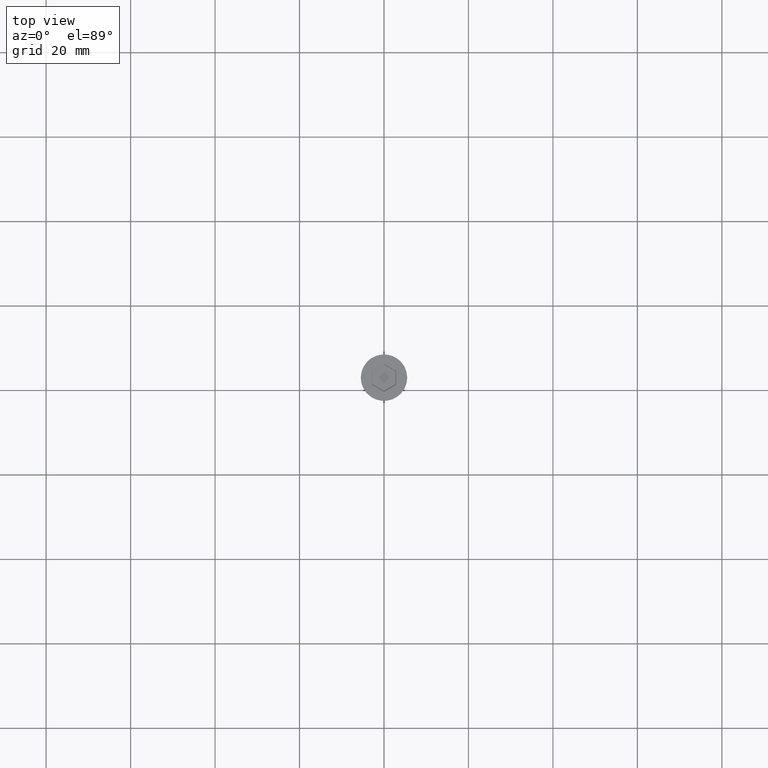
[diagram: clean part render]
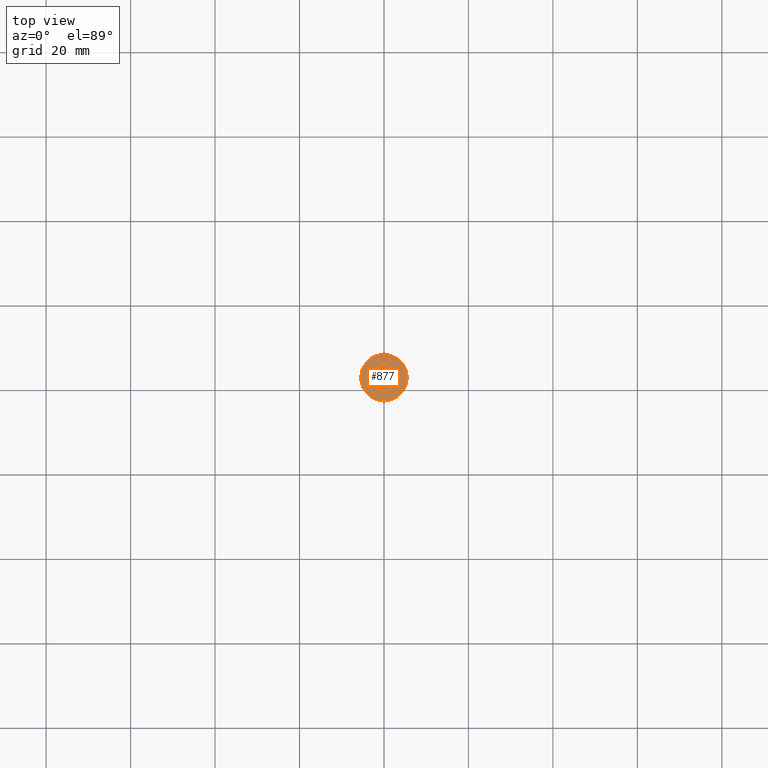
[diagram: same view with one face highlighted and labeled with its STEP entity id]
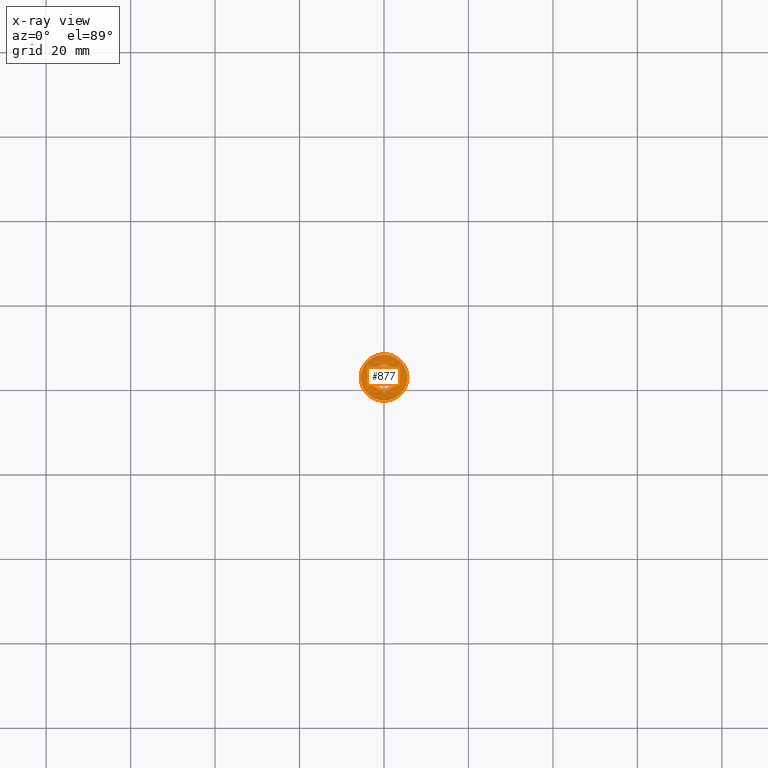
[diagram: x-ray of the same camera — body ghosted, the highlighted face saturated]
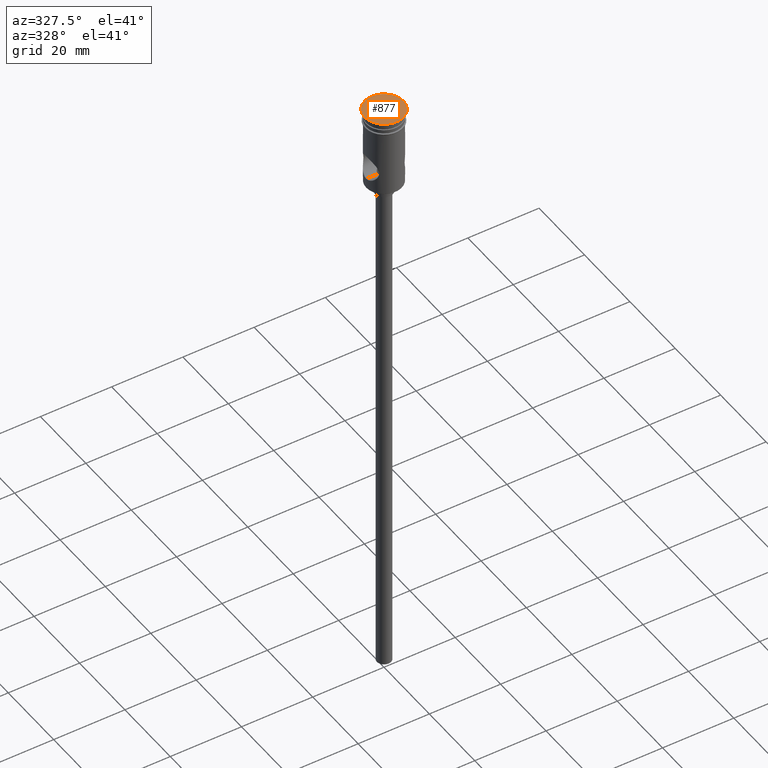
[diagram: same view with one face highlighted and labeled with its STEP entity id]
A machine part, top view. The second image highlights one B-rep face of the part: STEP entity #877.
The next image is the same camera in x-ray: the body ghosted, the highlighted face saturated — about 0% of this face is hidden behind the body in this view.
A second angle (auxiliary view) of the same face is appended — the face is thin or edge-on in the first view.
In plain terms, the highlighted planar face has unit normal (0, -0, 1).
Its self-contained STEP definition (entity closure, byte-faithful):
#8 = DIRECTION ( 'NONE',  ( 0.8660254037844387076, 0.4999999999999998890, 0.000000000000000000 ) ) ;
#23 = CARTESIAN_POINT ( 'NONE',  ( -2.899999999999994138, -1.674315780649910934, 0.000000000000000000 ) ) ;
#99 = CIRCLE ( 'NONE', #493, 5.500000000000000000 ) ;
#112 = CARTESIAN_POINT ( 'NONE',  ( 2.799999999999996270, 1.732050807568872086, 0.000000000000000000 ) ) ;
#115 = EDGE_CURVE ( 'NONE', #144, #523, #1067, .T. ) ;
#135 = LINE ( 'NONE', #881, #1337 ) ;
#140 = VECTOR ( 'NONE', #1317, 1000.000000000000000 ) ;
#144 = VERTEX_POINT ( 'NONE', #779 ) ;
#178 = DIRECTION ( 'NONE',  ( 0.000000000000000000, -0.000000000000000000, 1.000000000000000000 ) ) ;
#193 = ORIENTED_EDGE ( 'NONE', *, *, #1361, .T. ) ;
#197 = PLANE ( 'NONE',  #1152 ) ;
#243 = EDGE_CURVE ( 'NONE', #773, #884, #1100, .T. ) ;
#265 = EDGE_CURVE ( 'NONE', #464, #1016, #1006, .T. ) ;
#302 = DIRECTION ( 'NONE',  ( 1.000000000000000000, 0.000000000000000000, 0.000000000000000000 ) ) ;
#389 = FACE_BOUND ( 'NONE', #589, .T. ) ;
#419 = DIRECTION ( 'NONE',  ( -0.000000000000000000, -0.000000000000000000, 1.000000000000000000 ) ) ;
#464 = VERTEX_POINT ( 'NONE', #23 ) ;
#475 = EDGE_CURVE ( 'NONE', #823, #144, #135, .T. ) ;
#481 = CARTESIAN_POINT ( 'NONE',  ( 5.500000000000000000, 0.000000000000000000, 0.000000000000000000 ) ) ;
#493 = AXIS2_PLACEMENT_3D ( 'NONE', #947, #1008, #1252 ) ;
#518 = ORIENTED_EDGE ( 'NONE', *, *, #990, .T. ) ;
#523 = VERTEX_POINT ( 'NONE', #607 ) ;
#549 = LINE ( 'NONE', #1460, #1134 ) ;
#573 = CARTESIAN_POINT ( 'NONE',  ( -5.500000000000000000, 6.735557395310442023E-16, 0.000000000000000000 ) ) ;
#589 = EDGE_LOOP ( 'NONE', ( #193, #949, #1156, #518, #620, #866 ) ) ;
#600 = VERTEX_POINT ( 'NONE', #802 ) ;
#606 = AXIS2_PLACEMENT_3D ( 'NONE', #1432, #419, #302 ) ;
#607 = CARTESIAN_POINT ( 'NONE',  ( -4.552601062339046804E-16, -3.348631561299821868, 0.000000000000000000 ) ) ;
#620 = ORIENTED_EDGE ( 'NONE', *, *, #475, .T. ) ;
#623 = DIRECTION ( 'NONE',  ( -0.8660254037844385966, 0.5000000000000001110, 0.000000000000000000 ) ) ;
#640 = VECTOR ( 'NONE', #623, 1000.000000000000114 ) ;
#692 = CARTESIAN_POINT ( 'NONE',  ( -2.899999999999994138, 1.674315780649911600, 0.000000000000000000 ) ) ;
#720 = VECTOR ( 'NONE', #1233, 1000.000000000000000 ) ;
#773 = VERTEX_POINT ( 'NONE', #481 ) ;
#779 = CARTESIAN_POINT ( 'NONE',  ( 2.899999999999992362, -1.674315780649911822, 0.000000000000000000 ) ) ;
#802 = CARTESIAN_POINT ( 'NONE',  ( -9.683804684061200344E-16, 3.348631561299821868, 0.000000000000000000 ) ) ;
#807 = EDGE_CURVE ( 'NONE', #884, #773, #99, .T. ) ;
#823 = VERTEX_POINT ( 'NONE', #1339 ) ;
#866 = ORIENTED_EDGE ( 'NONE', *, *, #115, .T. ) ;
#877 = ADVANCED_FACE ( 'NONE', ( #389, #1070 ), #197, .T. ) ;
#881 = CARTESIAN_POINT ( 'NONE',  ( 2.899999999999992362, -1.558845726811989296, 0.000000000000000000 ) ) ;
#884 = VERTEX_POINT ( 'NONE', #573 ) ;
#902 = CARTESIAN_POINT ( 'NONE',  ( 0.09999999999999654998, -3.290896534380861382, 0.000000000000000000 ) ) ;
#947 = CARTESIAN_POINT ( 'NONE',  ( 0.000000000000000000, 0.000000000000000000, 0.000000000000000000 ) ) ;
#949 = ORIENTED_EDGE ( 'NONE', *, *, #265, .T. ) ;
#963 = LINE ( 'NONE', #1300, #640 ) ;
#985 = DIRECTION ( 'NONE',  ( 1.000000000000000000, 0.000000000000000000, 0.000000000000000000 ) ) ;
#990 = EDGE_CURVE ( 'NONE', #600, #823, #1118, .T. ) ;
#1006 = LINE ( 'NONE', #1115, #140 ) ;
#1008 = DIRECTION ( 'NONE',  ( -0.000000000000000000, -0.000000000000000000, 1.000000000000000000 ) ) ;
#1016 = VERTEX_POINT ( 'NONE', #692 ) ;
#1067 = LINE ( 'NONE', #902, #1333 ) ;
#1070 = FACE_OUTER_BOUND ( 'NONE', #1137, .T. ) ;
#1100 = CIRCLE ( 'NONE', #606, 5.500000000000000000 ) ;
#1115 = CARTESIAN_POINT ( 'NONE',  ( -2.899999999999994138, 1.558845726811988852, 0.000000000000000000 ) ) ;
#1118 = LINE ( 'NONE', #112, #720 ) ;
#1134 = VECTOR ( 'NONE', #8, 1000.000000000000000 ) ;
#1137 = EDGE_LOOP ( 'NONE', ( #1319, #1281 ) ) ;
#1152 = AXIS2_PLACEMENT_3D ( 'NONE', #1280, #178, #985 ) ;
#1156 = ORIENTED_EDGE ( 'NONE', *, *, #1164, .T. ) ;
#1164 = EDGE_CURVE ( 'NONE', #1016, #600, #549, .T. ) ;
#1233 = DIRECTION ( 'NONE',  ( 0.8660254037844387076, -0.4999999999999998335, 0.000000000000000000 ) ) ;
#1252 = DIRECTION ( 'NONE',  ( 1.000000000000000000, 0.000000000000000000, 0.000000000000000000 ) ) ;
#1280 = CARTESIAN_POINT ( 'NONE',  ( 0.000000000000000000, 0.000000000000000000, 0.000000000000000000 ) ) ;
#1281 = ORIENTED_EDGE ( 'NONE', *, *, #807, .T. ) ;
#1300 = CARTESIAN_POINT ( 'NONE',  ( -2.799999999999997158, -1.732050807568871864, 0.000000000000000000 ) ) ;
#1317 = DIRECTION ( 'NONE',  ( 0.000000000000000000, 1.000000000000000000, 0.000000000000000000 ) ) ;
#1319 = ORIENTED_EDGE ( 'NONE', *, *, #243, .T. ) ;
#1333 = VECTOR ( 'NONE', #1335, 1000.000000000000000 ) ;
#1335 = DIRECTION ( 'NONE',  ( -0.8660254037844387076, -0.4999999999999998890, 0.000000000000000000 ) ) ;
#1337 = VECTOR ( 'NONE', #1458, 1000.000000000000000 ) ;
#1339 = CARTESIAN_POINT ( 'NONE',  ( 2.899999999999992806, 1.674315780649911378, 0.000000000000000000 ) ) ;
#1361 = EDGE_CURVE ( 'NONE', #523, #464, #963, .T. ) ;
#1432 = CARTESIAN_POINT ( 'NONE',  ( 0.000000000000000000, 0.000000000000000000, 0.000000000000000000 ) ) ;
#1458 = DIRECTION ( 'NONE',  ( -1.391032035867740017E-16, -1.000000000000000000, 0.000000000000000000 ) ) ;
#1460 = CARTESIAN_POINT ( 'NONE',  ( -0.09999999999999764633, 3.290896534380861382, 0.000000000000000000 ) ) ;